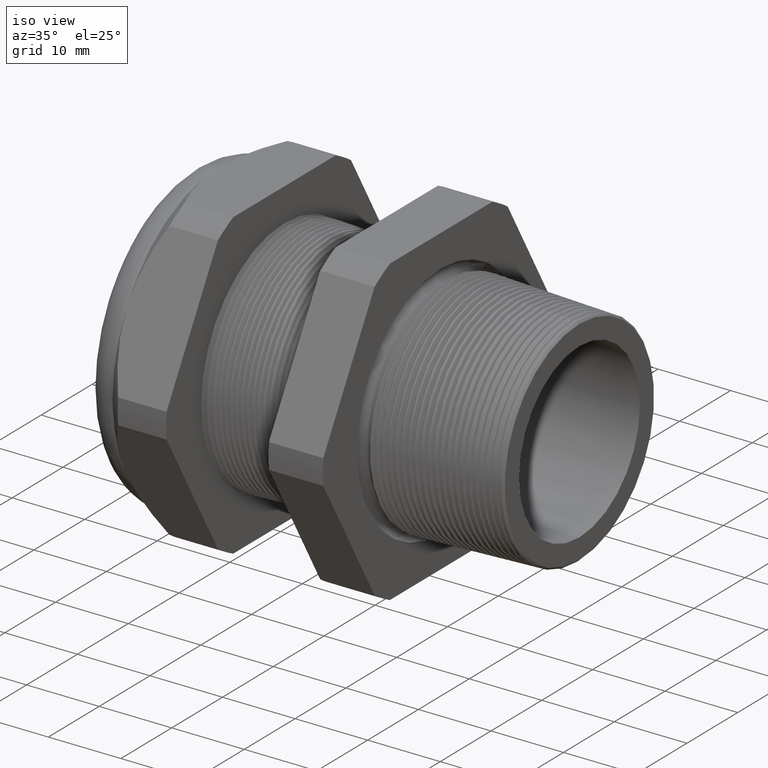
[diagram: clean part render]
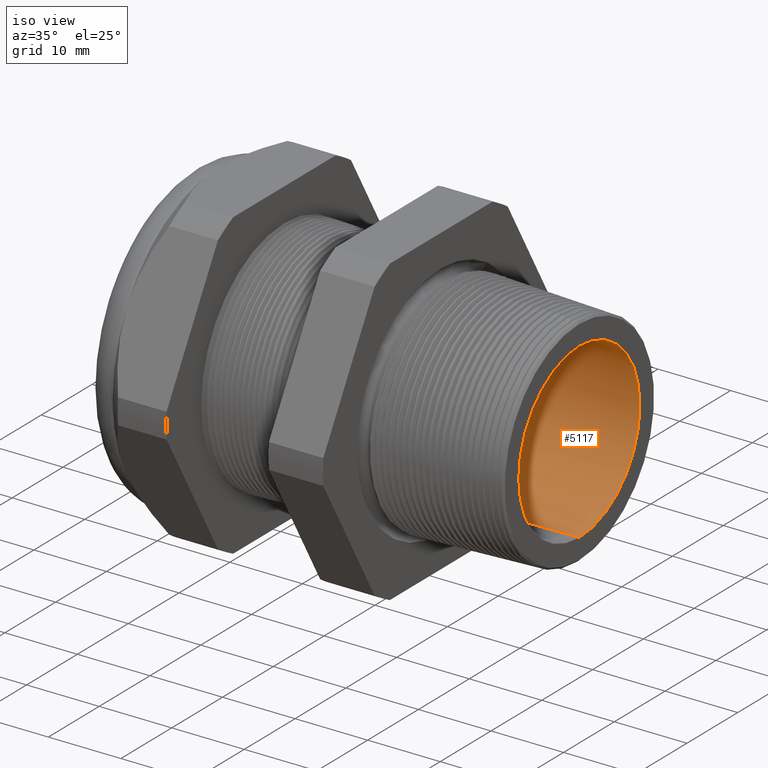
[diagram: same view with one face highlighted and labeled with its STEP entity id]
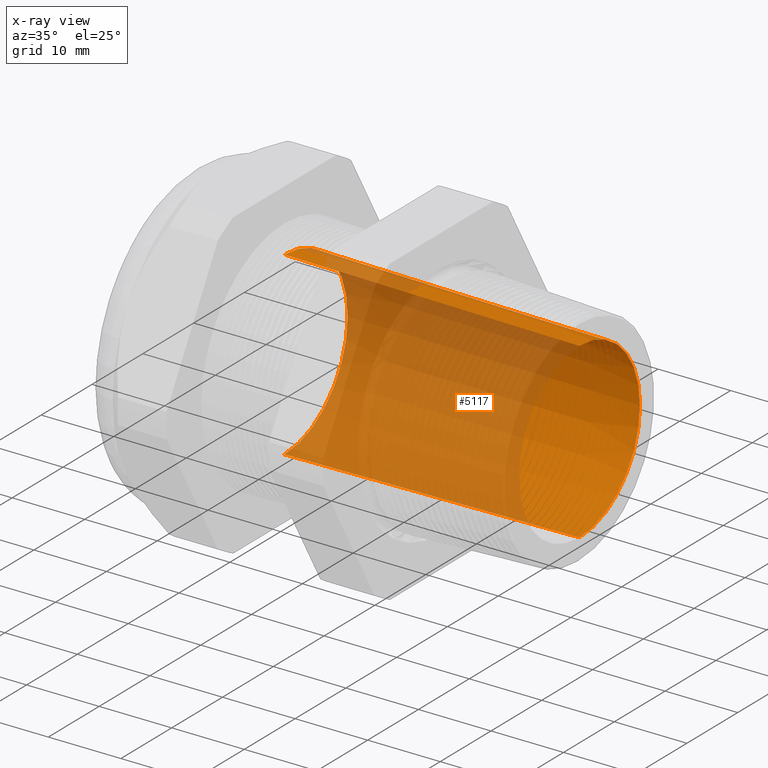
[diagram: x-ray of the same camera — body ghosted, the highlighted face saturated]
A machine part, iso view. The second image highlights one B-rep face of the part: STEP entity #5117.
The next image is the same camera in x-ray: the body ghosted, the highlighted face saturated — about 67% of this face is hidden behind the body in this view.
In plain terms, the highlighted conical surface has half-angle 0.748 deg.
Its self-contained STEP definition (entity closure, byte-faithful):
#2559 = VERTEX_POINT ( 'NONE', #3044 ) ;
#2565 = VERTEX_POINT ( 'NONE', #3096 ) ;
#3044 = CARTESIAN_POINT ( 'NONE',  ( -1.160314960629921200, 6.000769315822029800E-017, 0.4899999999999999900 ) ) ;
#3096 = CARTESIAN_POINT ( 'NONE',  ( -1.160314960629921200, 0.0000000000000000000, -0.4899999999999999900 ) ) ;
#3115 = DIRECTION ( 'NONE',  ( -0.9999148586493628000, 1.598037156080085500E-018, -0.01304896364562174900 ) ) ;
#3116 = VECTOR ( 'NONE', #3115, 39.37007874015748100 ) ;
#3117 = CARTESIAN_POINT ( 'NONE',  ( -1.160314960629921200, 6.000769315822029800E-017, -0.4899999999999999900 ) ) ;
#3118 = LINE ( 'NONE', #3117, #3116 ) ;
#3124 = CARTESIAN_POINT ( 'NONE',  ( 0.4400000000000001100, 0.0000000000000000000, 0.4691157701456586900 ) ) ;
#3125 = CARTESIAN_POINT ( 'NONE',  ( 0.4400000000000001100, 5.872890289603146600E-017, -0.4691157701456586900 ) ) ;
#3256 = DIRECTION ( 'NONE',  ( -0.9999148586493628000, 0.0000000000000000000, 0.01304896364562174900 ) ) ;
#3257 = VECTOR ( 'NONE', #3256, 39.37007874015748100 ) ;
#3258 = CARTESIAN_POINT ( 'NONE',  ( -1.160314960629921200, 0.0000000000000000000, 0.4899999999999999900 ) ) ;
#3259 = LINE ( 'NONE', #3258, #3257 ) ;
#3615 = DIRECTION ( 'NONE',  ( 0.0000000000000000000, 0.0000000000000000000, -1.000000000000000000 ) ) ;
#3616 = DIRECTION ( 'NONE',  ( 1.000000000000000000, 0.0000000000000000000, 0.0000000000000000000 ) ) ;
#3617 = CARTESIAN_POINT ( 'NONE',  ( 0.4400000000000001100, 0.0000000000000000000, 0.0000000000000000000 ) ) ;
#3618 = AXIS2_PLACEMENT_3D ( 'NONE', #3617, #3616, #3615 ) ;
#3619 = DIRECTION ( 'NONE',  ( 0.0000000000000000000, 0.0000000000000000000, 1.000000000000000000 ) ) ;
#3620 = DIRECTION ( 'NONE',  ( -1.000000000000000000, 0.0000000000000000000, 0.0000000000000000000 ) ) ;
#3621 = CARTESIAN_POINT ( 'NONE',  ( -1.160314960629921200, 0.0000000000000000000, 0.0000000000000000000 ) ) ;
#3622 = AXIS2_PLACEMENT_3D ( 'NONE', #3621, #3620, #3619 ) ;
#3623 = CIRCLE ( 'NONE', #3618, 0.4691157701456586900 ) ;
#3624 = CONICAL_SURFACE ( 'NONE', #3622, 0.4899999999999999900, 0.01304933399369762400 ) ;
#3625 = FACE_OUTER_BOUND ( 'NONE', #5118, .T. ) ;
#3733 = DIRECTION ( 'NONE',  ( 0.0000000000000000000, 0.0000000000000000000, -1.000000000000000000 ) ) ;
#3734 = DIRECTION ( 'NONE',  ( 1.000000000000000000, 0.0000000000000000000, 0.0000000000000000000 ) ) ;
#3735 = CARTESIAN_POINT ( 'NONE',  ( -1.160314960629921200, 0.0000000000000000000, 0.0000000000000000000 ) ) ;
#3736 = AXIS2_PLACEMENT_3D ( 'NONE', #3735, #3734, #3733 ) ;
#3741 = CIRCLE ( 'NONE', #3736, 0.4899999999999999900 ) ;
#3928 = VERTEX_POINT ( 'NONE', #3125 ) ;
#3937 = VERTEX_POINT ( 'NONE', #3124 ) ;
#4094 = EDGE_CURVE ( 'NONE', #3928, #2565, #3118, .T. ) ;
#4923 = EDGE_CURVE ( 'NONE', #3937, #2559, #3259, .T. ) ;
#5117 = ADVANCED_FACE ( 'NONE', ( #3625 ), #3624, .F. ) ;
#5118 = EDGE_LOOP ( 'NONE', ( #5119, #5120, #5178, #5179 ) ) ;
#5119 = ORIENTED_EDGE ( 'NONE', *, *, #4094, .F. ) ;
#5120 = ORIENTED_EDGE ( 'NONE', *, *, #5121, .T. ) ;
#5121 = EDGE_CURVE ( 'NONE', #3928, #3937, #3623, .T. ) ;
#5178 = ORIENTED_EDGE ( 'NONE', *, *, #4923, .T. ) ;
#5179 = ORIENTED_EDGE ( 'NONE', *, *, #5197, .F. ) ;
#5197 = EDGE_CURVE ( 'NONE', #2565, #2559, #3741, .T. ) ;